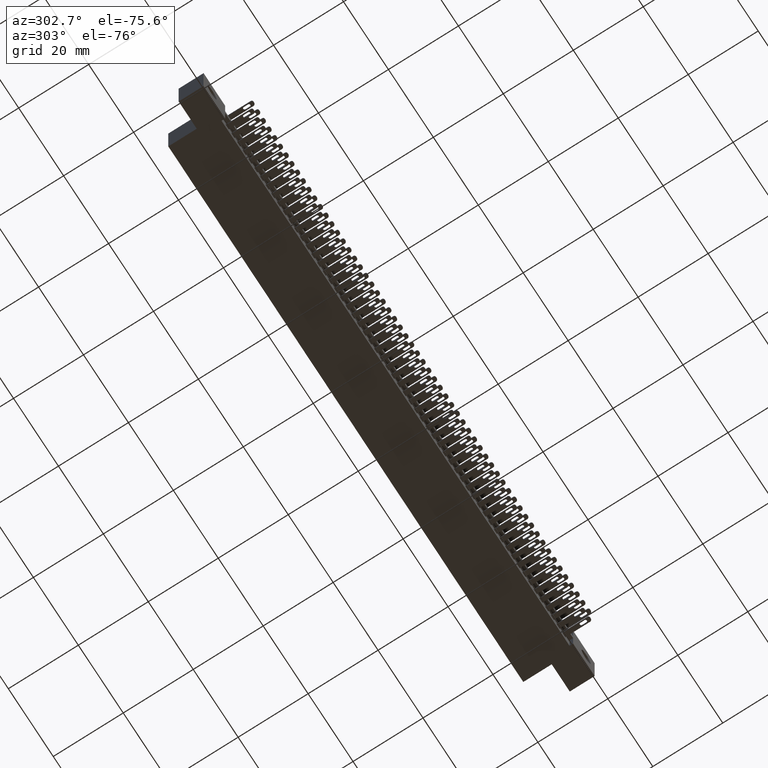
[diagram: clean part render]
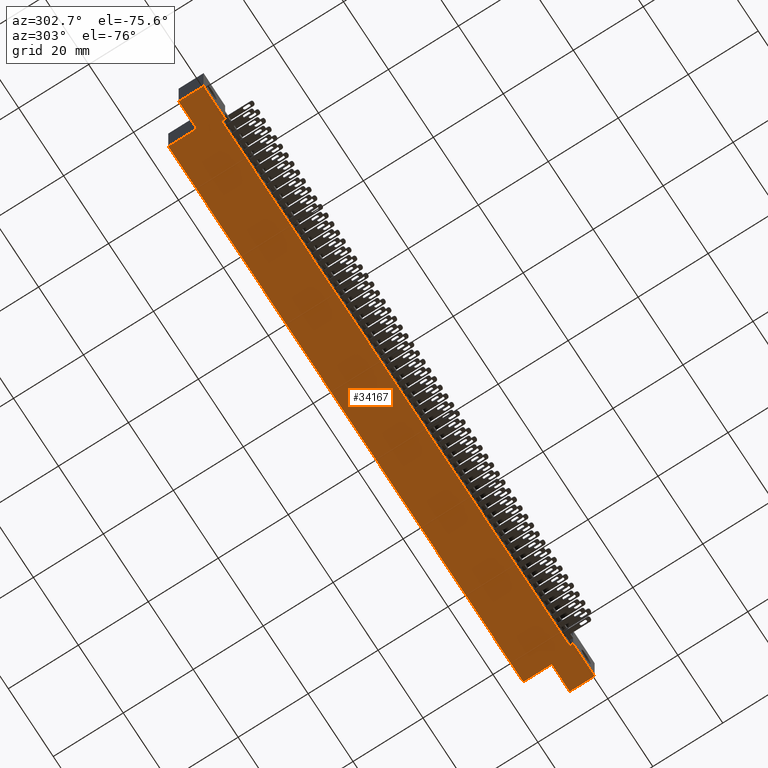
[diagram: same view with one face highlighted and labeled with its STEP entity id]
A machine part, auxiliary view. The second image highlights one B-rep face of the part: STEP entity #34167.
In plain terms, the highlighted planar face has unit normal (0, 0, 1).
Its self-contained STEP definition (entity closure, byte-faithful):
#577 = VERTEX_POINT ( 'NONE', #21850 ) ;
#830 = CARTESIAN_POINT ( 'NONE',  ( 6.538499999999999100, 0.2799999999999999700, -0.4900000000000007100 ) ) ;
#1233 = VECTOR ( 'NONE', #3575, 39.37007874015748100 ) ;
#1451 = CARTESIAN_POINT ( 'NONE',  ( 0.0000000000000000000, 0.5999999999999999800, -0.4899999999999999900 ) ) ;
#2319 = CARTESIAN_POINT ( 'NONE',  ( 6.854999999999999500, 0.2799999999999999700, -0.4899999999999999900 ) ) ;
#2471 = LINE ( 'NONE', #1451, #33128 ) ;
#2549 = LINE ( 'NONE', #18707, #34514 ) ;
#2866 = EDGE_CURVE ( 'NONE', #14648, #30682, #30135, .T. ) ;
#2950 = CARTESIAN_POINT ( 'NONE',  ( 0.3775000000000000600, 0.04000000000000000100, -0.4900000000000000500 ) ) ;
#3224 = ORIENTED_EDGE ( 'NONE', *, *, #30873, .F. ) ;
#3243 = DIRECTION ( 'NONE',  ( -0.0000000000000000000, 1.000000000000000000, -0.0000000000000000000 ) ) ;
#3575 = DIRECTION ( 'NONE',  ( -1.000000000000000000, -0.0000000000000000000, -0.0000000000000000000 ) ) ;
#3730 = CARTESIAN_POINT ( 'NONE',  ( 6.854999999999999500, 0.5999999999999999800, -0.4899999999999999900 ) ) ;
#3851 = DIRECTION ( 'NONE',  ( -0.0000000000000000000, -1.000000000000000000, -0.0000000000000000000 ) ) ;
#4042 = ORIENTED_EDGE ( 'NONE', *, *, #22082, .F. ) ;
#4963 = FACE_OUTER_BOUND ( 'NONE', #6914, .T. ) ;
#5534 = EDGE_CURVE ( 'NONE', #31677, #14648, #33192, .T. ) ;
#5743 = DIRECTION ( 'NONE',  ( 0.0000000000000000000, 0.0000000000000000000, 1.000000000000000000 ) ) ;
#6873 = ORIENTED_EDGE ( 'NONE', *, *, #5534, .F. ) ;
#6914 = EDGE_LOOP ( 'NONE', ( #31875, #12756, #3224, #19329, #30629, #28018, #24306, #35556, #15090, #6873, #4042, #17983 ) ) ;
#7421 = CARTESIAN_POINT ( 'NONE',  ( 0.3775000000000000600, 0.04000000000000000100, -0.4900000000000000500 ) ) ;
#8285 = VECTOR ( 'NONE', #13034, 39.37007874015748100 ) ;
#8763 = CARTESIAN_POINT ( 'NONE',  ( 0.0000000000000000000, 0.5999999999999999800, -0.4899999999999999900 ) ) ;
#9032 = EDGE_CURVE ( 'NONE', #9587, #21907, #30280, .T. ) ;
#9328 = VECTOR ( 'NONE', #14734, 39.37007874015748100 ) ;
#9587 = VERTEX_POINT ( 'NONE', #30417 ) ;
#10475 = CARTESIAN_POINT ( 'NONE',  ( 0.3165000000000000000, 0.2799999999999999700, -0.4899999999999999900 ) ) ;
#10613 = CARTESIAN_POINT ( 'NONE',  ( 0.0000000000000000000, 0.5999999999999999800, -0.4899999999999999900 ) ) ;
#10792 = CARTESIAN_POINT ( 'NONE',  ( 6.854999999999999500, 0.2799999999999999700, -0.4899999999999999900 ) ) ;
#12756 = ORIENTED_EDGE ( 'NONE', *, *, #18048, .F. ) ;
#12877 = CARTESIAN_POINT ( 'NONE',  ( 6.477500000000000000, 0.0000000000000000000, -0.4900000000000007100 ) ) ;
#13034 = DIRECTION ( 'NONE',  ( 1.000000000000000000, 0.0000000000000000000, -1.119609833468960400E-016 ) ) ;
#13187 = VECTOR ( 'NONE', #3851, 39.37007874015748100 ) ;
#14595 = EDGE_CURVE ( 'NONE', #14703, #21907, #2471, .T. ) ;
#14629 = CARTESIAN_POINT ( 'NONE',  ( 0.3165000000000000000, 0.5999999999999999800, -0.4899999999999999900 ) ) ;
#14648 = VERTEX_POINT ( 'NONE', #21639 ) ;
#14703 = VERTEX_POINT ( 'NONE', #27494 ) ;
#14734 = DIRECTION ( 'NONE',  ( -0.0000000000000000000, -1.000000000000000000, -0.0000000000000000000 ) ) ;
#15090 = ORIENTED_EDGE ( 'NONE', *, *, #2866, .F. ) ;
#15179 = CARTESIAN_POINT ( 'NONE',  ( 6.854999999999999500, 0.0000000000000000000, -0.4899999999999999900 ) ) ;
#15251 = VERTEX_POINT ( 'NONE', #2950 ) ;
#15717 = LINE ( 'NONE', #7421, #8285 ) ;
#16724 = DIRECTION ( 'NONE',  ( 1.000000000000000000, 0.0000000000000000000, -0.0000000000000000000 ) ) ;
#17983 = ORIENTED_EDGE ( 'NONE', *, *, #28733, .T. ) ;
#18048 = EDGE_CURVE ( 'NONE', #577, #34416, #35401, .T. ) ;
#18288 = VERTEX_POINT ( 'NONE', #2319 ) ;
#18707 = CARTESIAN_POINT ( 'NONE',  ( 0.0000000000000000000, 0.0000000000000000000, -0.4899999999999999900 ) ) ;
#19329 = ORIENTED_EDGE ( 'NONE', *, *, #27202, .T. ) ;
#19624 = LINE ( 'NONE', #28693, #1233 ) ;
#20862 = DIRECTION ( 'NONE',  ( -0.0000000000000000000, -1.000000000000000000, -0.0000000000000000000 ) ) ;
#21639 = CARTESIAN_POINT ( 'NONE',  ( 6.538499999999999100, 0.5999999999999999800, -0.4899999999999999900 ) ) ;
#21850 = CARTESIAN_POINT ( 'NONE',  ( 6.477500000000000000, 0.04000000000000000100, -0.4900000000000007100 ) ) ;
#21907 = VERTEX_POINT ( 'NONE', #30061 ) ;
#22082 = EDGE_CURVE ( 'NONE', #18288, #31677, #31572, .T. ) ;
#22670 = VECTOR ( 'NONE', #24720, 39.37007874015748100 ) ;
#22692 = CARTESIAN_POINT ( 'NONE',  ( 0.3775000000000000600, 0.04000000000000000100, -0.4900000000000000500 ) ) ;
#22820 = VECTOR ( 'NONE', #25188, 39.37007874015748100 ) ;
#22822 = LINE ( 'NONE', #3730, #13187 ) ;
#23288 = CARTESIAN_POINT ( 'NONE',  ( 6.477500000000000000, 0.04000000000000000100, -0.4900000000000007100 ) ) ;
#24032 = LINE ( 'NONE', #32683, #32372 ) ;
#24120 = VECTOR ( 'NONE', #27821, 39.37007874015748100 ) ;
#24210 = DIRECTION ( 'NONE',  ( -1.000000000000000000, -0.0000000000000000000, -0.0000000000000000000 ) ) ;
#24306 = ORIENTED_EDGE ( 'NONE', *, *, #24428, .F. ) ;
#24428 = EDGE_CURVE ( 'NONE', #31356, #14703, #19624, .T. ) ;
#24720 = DIRECTION ( 'NONE',  ( -1.000000000000000000, -0.0000000000000000000, -0.0000000000000000000 ) ) ;
#25106 = LINE ( 'NONE', #22692, #9328 ) ;
#25188 = DIRECTION ( 'NONE',  ( -1.000000000000000000, -0.0000000000000000000, -0.0000000000000000000 ) ) ;
#25727 = VECTOR ( 'NONE', #3243, 39.37007874015748100 ) ;
#25934 = VERTEX_POINT ( 'NONE', #15179 ) ;
#27202 = EDGE_CURVE ( 'NONE', #15251, #9587, #25106, .T. ) ;
#27259 = DIRECTION ( 'NONE',  ( -0.0000000000000000000, 1.000000000000000000, -0.0000000000000000000 ) ) ;
#27494 = CARTESIAN_POINT ( 'NONE',  ( 0.0000000000000000000, 0.2799999999999999700, -0.4899999999999999900 ) ) ;
#27821 = DIRECTION ( 'NONE',  ( -1.000000000000000000, 0.0000000000000000000, -2.373643596390743400E-015 ) ) ;
#27946 = VECTOR ( 'NONE', #20862, 39.37007874015748100 ) ;
#28018 = ORIENTED_EDGE ( 'NONE', *, *, #14595, .F. ) ;
#28693 = CARTESIAN_POINT ( 'NONE',  ( 0.0000000000000000000, 0.2799999999999999700, -0.4899999999999999900 ) ) ;
#28733 = EDGE_CURVE ( 'NONE', #18288, #25934, #22822, .T. ) ;
#29860 = CARTESIAN_POINT ( 'NONE',  ( 6.538499999999999100, 0.2799999999999999700, -0.4900000000000007100 ) ) ;
#30061 = CARTESIAN_POINT ( 'NONE',  ( 0.0000000000000000000, 0.0000000000000000000, -0.4899999999999999900 ) ) ;
#30135 = LINE ( 'NONE', #10613, #22670 ) ;
#30280 = LINE ( 'NONE', #30819, #22820 ) ;
#30403 = EDGE_CURVE ( 'NONE', #31356, #30682, #24032, .T. ) ;
#30417 = CARTESIAN_POINT ( 'NONE',  ( 0.3775000000000000600, 0.0000000000000000000, -0.4900000000000000500 ) ) ;
#30629 = ORIENTED_EDGE ( 'NONE', *, *, #9032, .T. ) ;
#30682 = VERTEX_POINT ( 'NONE', #14629 ) ;
#30819 = CARTESIAN_POINT ( 'NONE',  ( 0.0000000000000000000, 0.0000000000000000000, -0.4899999999999999900 ) ) ;
#30873 = EDGE_CURVE ( 'NONE', #15251, #577, #15717, .T. ) ;
#31342 = EDGE_CURVE ( 'NONE', #25934, #34416, #2549, .T. ) ;
#31356 = VERTEX_POINT ( 'NONE', #10475 ) ;
#31572 = LINE ( 'NONE', #10792, #24120 ) ;
#31677 = VERTEX_POINT ( 'NONE', #29860 ) ;
#31875 = ORIENTED_EDGE ( 'NONE', *, *, #31342, .T. ) ;
#32372 = VECTOR ( 'NONE', #27259, 39.37007874015748100 ) ;
#32388 = AXIS2_PLACEMENT_3D ( 'NONE', #8763, #5743, #16724 ) ;
#32683 = CARTESIAN_POINT ( 'NONE',  ( 0.3165000000000000000, 0.2799999999999999700, -0.4899999999999999900 ) ) ;
#33128 = VECTOR ( 'NONE', #33145, 39.37007874015748100 ) ;
#33145 = DIRECTION ( 'NONE',  ( -0.0000000000000000000, -1.000000000000000000, -0.0000000000000000000 ) ) ;
#33192 = LINE ( 'NONE', #830, #25727 ) ;
#33754 = PLANE ( 'NONE',  #32388 ) ;
#34167 = ADVANCED_FACE ( 'NONE', ( #4963 ), #33754, .F. ) ;
#34416 = VERTEX_POINT ( 'NONE', #12877 ) ;
#34514 = VECTOR ( 'NONE', #24210, 39.37007874015748100 ) ;
#35401 = LINE ( 'NONE', #23288, #27946 ) ;
#35556 = ORIENTED_EDGE ( 'NONE', *, *, #30403, .T. ) ;